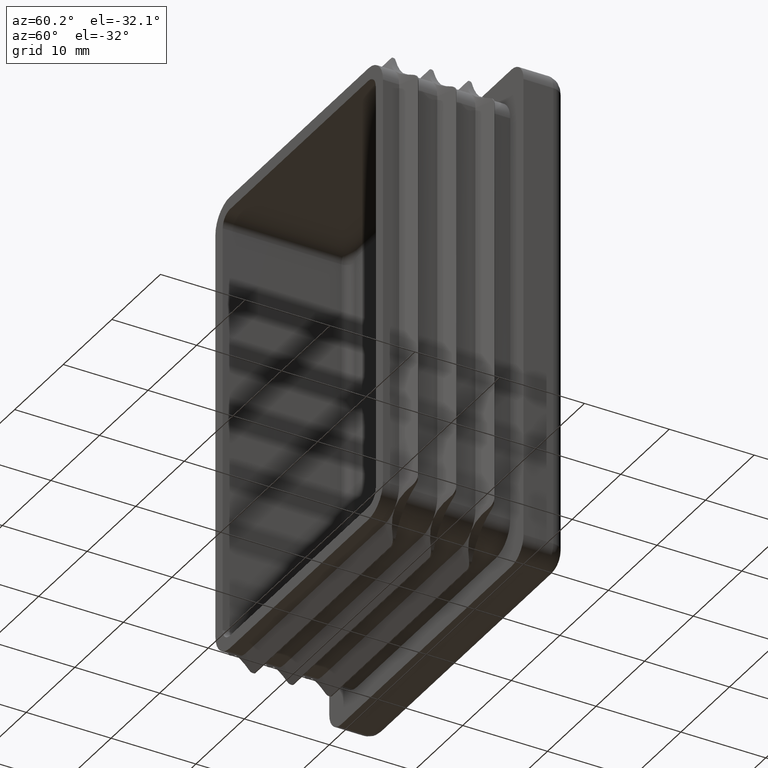
[diagram: clean part render]
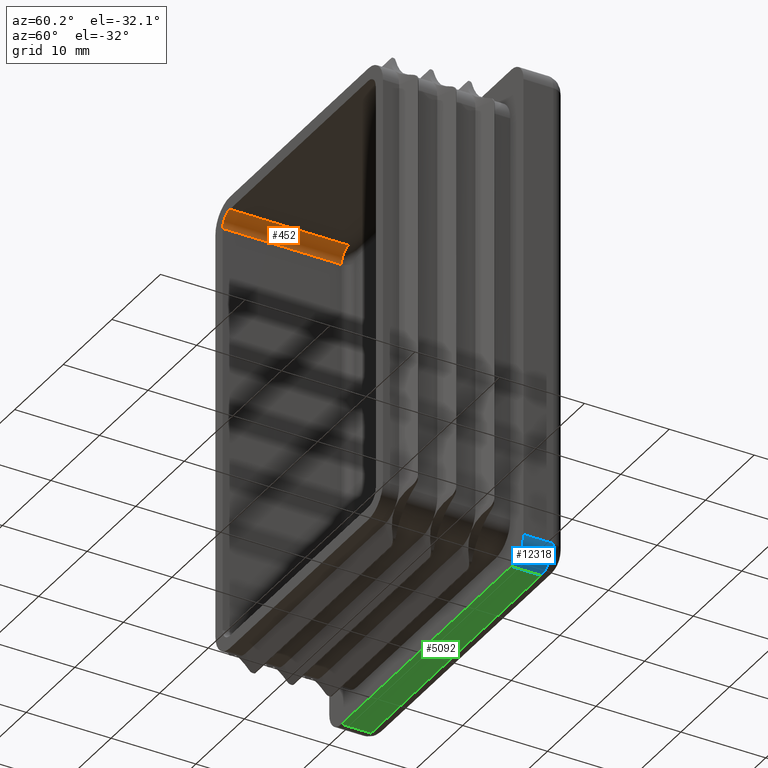
[diagram: same view with three faces highlighted in distinct colors, each labeled with its STEP entity id]
A machine part, auxiliary view with three faces highlighted in distinct colors.
Their STEP definitions:

[orange] entity #452 — the highlighted cylindrical surface (edge-blend (fillet) strip) has radius 1.5 mm, axis along (-0, 1, -0).
#375 = LINE ( 'NONE', #12543, #11044 ) ;
#452 = ADVANCED_FACE ( 'NONE', ( #11915 ), #7977, .F. ) ;
#537 = EDGE_CURVE ( 'NONE', #16834, #12463, #551, .T. ) ;
#551 = CIRCLE ( 'NONE', #13318, 1.499999999999997780 ) ;
#1717 = DIRECTION ( 'NONE',  ( 0.000000000000000000, 0.000000000000000000, 1.000000000000000000 ) ) ;
#2038 = AXIS2_PLACEMENT_3D ( 'NONE', #17820, #17879, #17677 ) ;
#2190 = VERTEX_POINT ( 'NONE', #2714 ) ;
#2714 = CARTESIAN_POINT ( 'NONE',  ( -15.75000000000000711, -15.00000000000000000, 24.25000000000000355 ) ) ;
#3727 = DIRECTION ( 'NONE',  ( -0.000000000000000000, 1.000000000000000000, -0.000000000000000000 ) ) ;
#3843 = ORIENTED_EDGE ( 'NONE', *, *, #10655, .T. ) ;
#4365 = CARTESIAN_POINT ( 'NONE',  ( -14.25000000000000533, -1.000000000000000888, 24.25000000000000355 ) ) ;
#6629 = DIRECTION ( 'NONE',  ( -0.000000000000000000, 1.000000000000000000, -0.000000000000000000 ) ) ;
#7592 = AXIS2_PLACEMENT_3D ( 'NONE', #16234, #8852, #8793 ) ;
#7691 = EDGE_CURVE ( 'NONE', #2190, #16834, #8043, .T. ) ;
#7977 = CYLINDRICAL_SURFACE ( 'NONE', #2038, 1.499999999999997780 ) ;
#8043 = LINE ( 'NONE', #8207, #16865 ) ;
#8207 = CARTESIAN_POINT ( 'NONE',  ( -15.75000000000000711, -15.00000000000000000, 24.25000000000000355 ) ) ;
#8793 = DIRECTION ( 'NONE',  ( 0.000000000000000000, 0.000000000000000000, 1.000000000000000000 ) ) ;
#8852 = DIRECTION ( 'NONE',  ( 0.000000000000000000, -1.000000000000000000, 0.000000000000000000 ) ) ;
#9006 = CARTESIAN_POINT ( 'NONE',  ( -15.75000000000000711, -1.000000000000000888, 24.25000000000000355 ) ) ;
#10321 = ORIENTED_EDGE ( 'NONE', *, *, #537, .T. ) ;
#10655 = EDGE_CURVE ( 'NONE', #18139, #2190, #11348, .T. ) ;
#11044 = VECTOR ( 'NONE', #6629, 1000.000000000000000 ) ;
#11060 = EDGE_CURVE ( 'NONE', #18139, #12463, #375, .T. ) ;
#11207 = CARTESIAN_POINT ( 'NONE',  ( -14.25000000000000533, -15.00000000000000000, 25.75000000000000355 ) ) ;
#11348 = CIRCLE ( 'NONE', #7592, 1.499999999999997780 ) ;
#11652 = ORIENTED_EDGE ( 'NONE', *, *, #11060, .F. ) ;
#11915 = FACE_OUTER_BOUND ( 'NONE', #13864, .T. ) ;
#12463 = VERTEX_POINT ( 'NONE', #14806 ) ;
#12543 = CARTESIAN_POINT ( 'NONE',  ( -14.25000000000000533, -15.00000000000000000, 25.75000000000000355 ) ) ;
#13318 = AXIS2_PLACEMENT_3D ( 'NONE', #4365, #17510, #1717 ) ;
#13864 = EDGE_LOOP ( 'NONE', ( #14131, #10321, #11652, #3843 ) ) ;
#14131 = ORIENTED_EDGE ( 'NONE', *, *, #7691, .T. ) ;
#14806 = CARTESIAN_POINT ( 'NONE',  ( -14.25000000000000533, -1.000000000000000888, 25.75000000000000355 ) ) ;
#16234 = CARTESIAN_POINT ( 'NONE',  ( -14.25000000000000533, -15.00000000000000000, 24.25000000000000355 ) ) ;
#16834 = VERTEX_POINT ( 'NONE', #9006 ) ;
#16865 = VECTOR ( 'NONE', #3727, 1000.000000000000000 ) ;
#17510 = DIRECTION ( 'NONE',  ( 0.000000000000000000, 1.000000000000000000, 0.000000000000000000 ) ) ;
#17677 = DIRECTION ( 'NONE',  ( 0.000000000000000000, 0.000000000000000000, 1.000000000000000000 ) ) ;
#17820 = CARTESIAN_POINT ( 'NONE',  ( -14.25000000000000533, -15.00000000000000000, 24.25000000000000355 ) ) ;
#17879 = DIRECTION ( 'NONE',  ( -0.000000000000000000, 1.000000000000000000, -0.000000000000000000 ) ) ;
#18139 = VERTEX_POINT ( 'NONE', #11207 ) ;

[blue] entity #12318 — the highlighted cylindrical surface (edge-blend (fillet) strip) has radius 2.5 mm, axis along (0, -1, 0).
#379 = DIRECTION ( 'NONE',  ( -0.000000000000000000, -1.000000000000000000, -0.000000000000000000 ) ) ;
#893 = EDGE_CURVE ( 'NONE', #7267, #12107, #10338, .T. ) ;
#901 = DIRECTION ( 'NONE',  ( 0.000000000000000000, 0.000000000000000000, 1.000000000000000000 ) ) ;
#1588 = ORIENTED_EDGE ( 'NONE', *, *, #5612, .T. ) ;
#2244 = DIRECTION ( 'NONE',  ( 0.000000000000000000, -1.000000000000000000, 0.000000000000000000 ) ) ;
#3929 = CIRCLE ( 'NONE', #11872, 2.499999999999998668 ) ;
#5612 = EDGE_CURVE ( 'NONE', #13183, #14175, #3929, .T. ) ;
#5849 = AXIS2_PLACEMENT_3D ( 'NONE', #13244, #10199, #11755 ) ;
#6603 = FACE_OUTER_BOUND ( 'NONE', #12032, .T. ) ;
#6769 = DIRECTION ( 'NONE',  ( -0.000000000000000000, -1.000000000000000000, -0.000000000000000000 ) ) ;
#6886 = CARTESIAN_POINT ( 'NONE',  ( 17.49999999999999645, 3.500000000000000000, -29.99999999999999289 ) ) ;
#7170 = VECTOR ( 'NONE', #16195, 1000.000000000000000 ) ;
#7267 = VERTEX_POINT ( 'NONE', #8686 ) ;
#7895 = CARTESIAN_POINT ( 'NONE',  ( 19.99999999999999645, 0.000000000000000000, -27.49999999999999289 ) ) ;
#8686 = CARTESIAN_POINT ( 'NONE',  ( 17.49999999999999645, 0.000000000000000000, -29.99999999999999289 ) ) ;
#9102 = ORIENTED_EDGE ( 'NONE', *, *, #893, .F. ) ;
#9506 = LINE ( 'NONE', #9645, #12968 ) ;
#9645 = CARTESIAN_POINT ( 'NONE',  ( 17.49999999999999645, 5.000000000000000000, -29.99999999999999289 ) ) ;
#10199 = DIRECTION ( 'NONE',  ( 0.000000000000000000, -1.000000000000000000, 0.000000000000000000 ) ) ;
#10316 = CYLINDRICAL_SURFACE ( 'NONE', #5849, 2.499999999999998668 ) ;
#10338 = CIRCLE ( 'NONE', #15314, 2.499999999999998668 ) ;
#10602 = ORIENTED_EDGE ( 'NONE', *, *, #10723, .F. ) ;
#10723 = EDGE_CURVE ( 'NONE', #13183, #7267, #9506, .T. ) ;
#10819 = DIRECTION ( 'NONE',  ( 0.000000000000000000, 0.000000000000000000, 1.000000000000000000 ) ) ;
#11136 = LINE ( 'NONE', #14503, #7170 ) ;
#11755 = DIRECTION ( 'NONE',  ( 0.000000000000000000, 0.000000000000000000, -1.000000000000000000 ) ) ;
#11872 = AXIS2_PLACEMENT_3D ( 'NONE', #14173, #6769, #901 ) ;
#12032 = EDGE_LOOP ( 'NONE', ( #10602, #1588, #15395, #9102 ) ) ;
#12107 = VERTEX_POINT ( 'NONE', #7895 ) ;
#12318 = ADVANCED_FACE ( 'NONE', ( #6603 ), #10316, .T. ) ;
#12968 = VECTOR ( 'NONE', #2244, 1000.000000000000000 ) ;
#13183 = VERTEX_POINT ( 'NONE', #6886 ) ;
#13244 = CARTESIAN_POINT ( 'NONE',  ( 17.49999999999999645, 5.000000000000000000, -27.49999999999999289 ) ) ;
#14173 = CARTESIAN_POINT ( 'NONE',  ( 17.49999999999999645, 3.500000000000000000, -27.49999999999999289 ) ) ;
#14175 = VERTEX_POINT ( 'NONE', #17448 ) ;
#14503 = CARTESIAN_POINT ( 'NONE',  ( 19.99999999999999645, 5.000000000000000000, -27.49999999999999289 ) ) ;
#15314 = AXIS2_PLACEMENT_3D ( 'NONE', #18260, #379, #10819 ) ;
#15395 = ORIENTED_EDGE ( 'NONE', *, *, #16777, .F. ) ;
#16195 = DIRECTION ( 'NONE',  ( -0.000000000000000000, 1.000000000000000000, -0.000000000000000000 ) ) ;
#16777 = EDGE_CURVE ( 'NONE', #12107, #14175, #11136, .T. ) ;
#17448 = CARTESIAN_POINT ( 'NONE',  ( 19.99999999999999645, 3.500000000000000000, -27.49999999999999289 ) ) ;
#18260 = CARTESIAN_POINT ( 'NONE',  ( 17.49999999999999645, 0.000000000000000000, -27.49999999999999289 ) ) ;

[green] entity #5092 — the highlighted planar face has unit normal (0, -0, 1).
#1106 = CARTESIAN_POINT ( 'NONE',  ( -17.49999999999999645, 3.500000000000000000, -29.99999999999998579 ) ) ;
#2244 = DIRECTION ( 'NONE',  ( 0.000000000000000000, -1.000000000000000000, 0.000000000000000000 ) ) ;
#2608 = CARTESIAN_POINT ( 'NONE',  ( -19.99999999999999645, 0.000000000000000000, -29.99999999999998579 ) ) ;
#3705 = PLANE ( 'NONE',  #7524 ) ;
#5092 = ADVANCED_FACE ( 'NONE', ( #11858 ), #3705, .F. ) ;
#5316 = DIRECTION ( 'NONE',  ( 1.734723475976807587E-16, -0.000000000000000000, 1.000000000000000000 ) ) ;
#5937 = VECTOR ( 'NONE', #12979, 1000.000000000000000 ) ;
#6723 = CARTESIAN_POINT ( 'NONE',  ( -17.49999999999999645, 5.000000000000000000, -29.99999999999998579 ) ) ;
#6792 = DIRECTION ( 'NONE',  ( 1.000000000000000000, 0.000000000000000000, -1.734723475976807587E-16 ) ) ;
#6850 = LINE ( 'NONE', #7249, #5937 ) ;
#6876 = ORIENTED_EDGE ( 'NONE', *, *, #10723, .T. ) ;
#6886 = CARTESIAN_POINT ( 'NONE',  ( 17.49999999999999645, 3.500000000000000000, -29.99999999999999289 ) ) ;
#7249 = CARTESIAN_POINT ( 'NONE',  ( 17.49999999999999645, 3.500000000000000000, -29.99999999999999289 ) ) ;
#7267 = VERTEX_POINT ( 'NONE', #8686 ) ;
#7524 = AXIS2_PLACEMENT_3D ( 'NONE', #11222, #5316, #6792 ) ;
#7686 = CARTESIAN_POINT ( 'NONE',  ( -17.49999999999999645, 0.000000000000000000, -29.99999999999998579 ) ) ;
#7709 = ORIENTED_EDGE ( 'NONE', *, *, #14464, .T. ) ;
#8630 = VERTEX_POINT ( 'NONE', #1106 ) ;
#8686 = CARTESIAN_POINT ( 'NONE',  ( 17.49999999999999645, 0.000000000000000000, -29.99999999999999289 ) ) ;
#9506 = LINE ( 'NONE', #9645, #12968 ) ;
#9645 = CARTESIAN_POINT ( 'NONE',  ( 17.49999999999999645, 5.000000000000000000, -29.99999999999999289 ) ) ;
#10271 = VECTOR ( 'NONE', #12710, 1000.000000000000000 ) ;
#10723 = EDGE_CURVE ( 'NONE', #13183, #7267, #9506, .T. ) ;
#11222 = CARTESIAN_POINT ( 'NONE',  ( -19.99999999999999645, 5.000000000000000000, -29.99999999999998579 ) ) ;
#11432 = EDGE_CURVE ( 'NONE', #8630, #13183, #6850, .T. ) ;
#11858 = FACE_OUTER_BOUND ( 'NONE', #15800, .T. ) ;
#12710 = DIRECTION ( 'NONE',  ( -0.000000000000000000, 1.000000000000000000, -0.000000000000000000 ) ) ;
#12820 = VERTEX_POINT ( 'NONE', #7686 ) ;
#12968 = VECTOR ( 'NONE', #2244, 1000.000000000000000 ) ;
#12979 = DIRECTION ( 'NONE',  ( 1.000000000000000000, -0.000000000000000000, -1.734723475976807587E-16 ) ) ;
#13120 = DIRECTION ( 'NONE',  ( -1.000000000000000000, -0.000000000000000000, 1.734723475976807341E-16 ) ) ;
#13183 = VERTEX_POINT ( 'NONE', #6886 ) ;
#13347 = ORIENTED_EDGE ( 'NONE', *, *, #15245, .T. ) ;
#14012 = ORIENTED_EDGE ( 'NONE', *, *, #11432, .T. ) ;
#14464 = EDGE_CURVE ( 'NONE', #12820, #8630, #18601, .T. ) ;
#14918 = VECTOR ( 'NONE', #13120, 1000.000000000000000 ) ;
#15245 = EDGE_CURVE ( 'NONE', #7267, #12820, #19060, .T. ) ;
#15800 = EDGE_LOOP ( 'NONE', ( #7709, #14012, #6876, #13347 ) ) ;
#18601 = LINE ( 'NONE', #6723, #10271 ) ;
#19060 = LINE ( 'NONE', #2608, #14918 ) ;